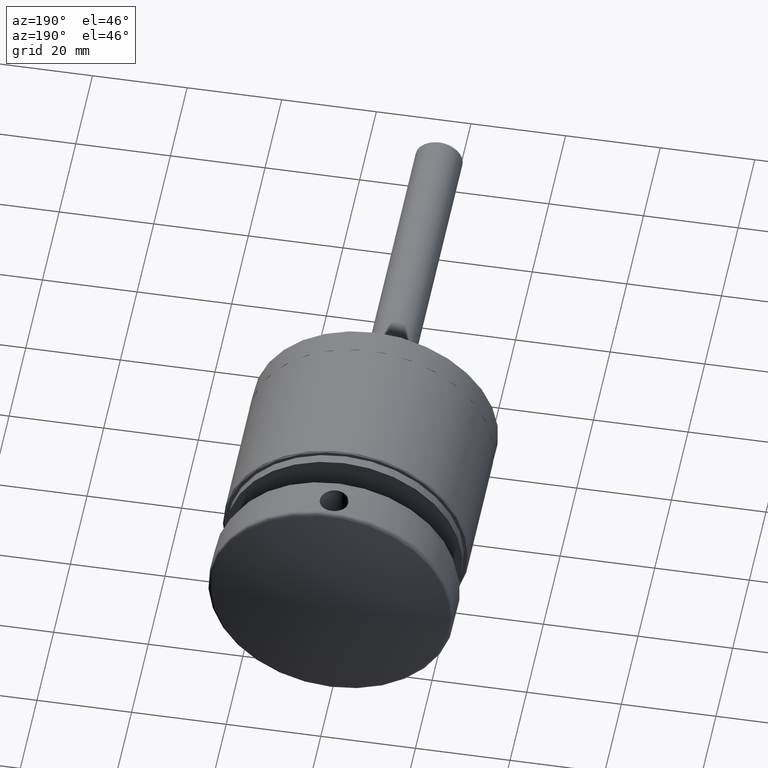
[diagram: clean part render]
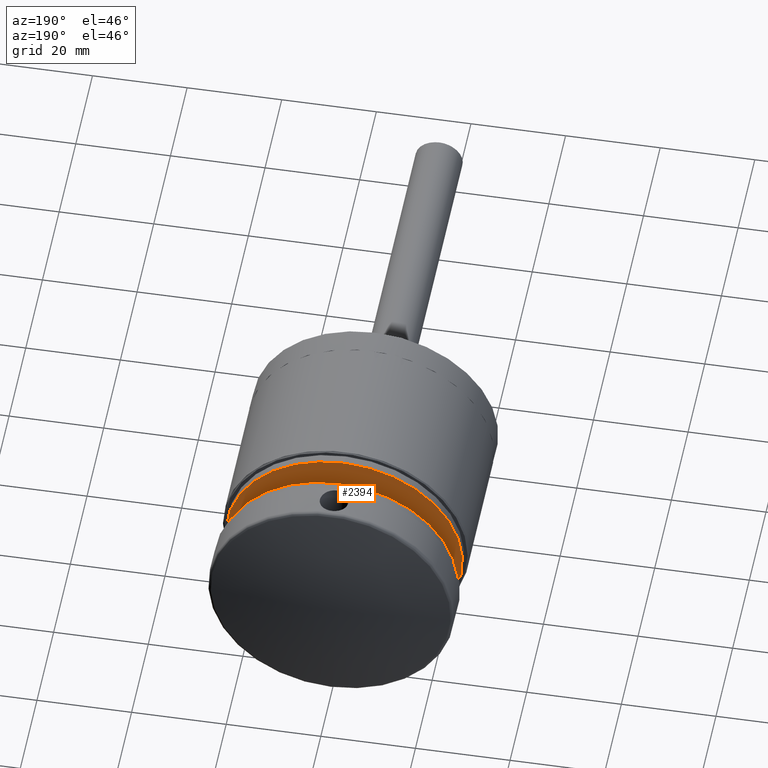
[diagram: same view with one face highlighted and labeled with its STEP entity id]
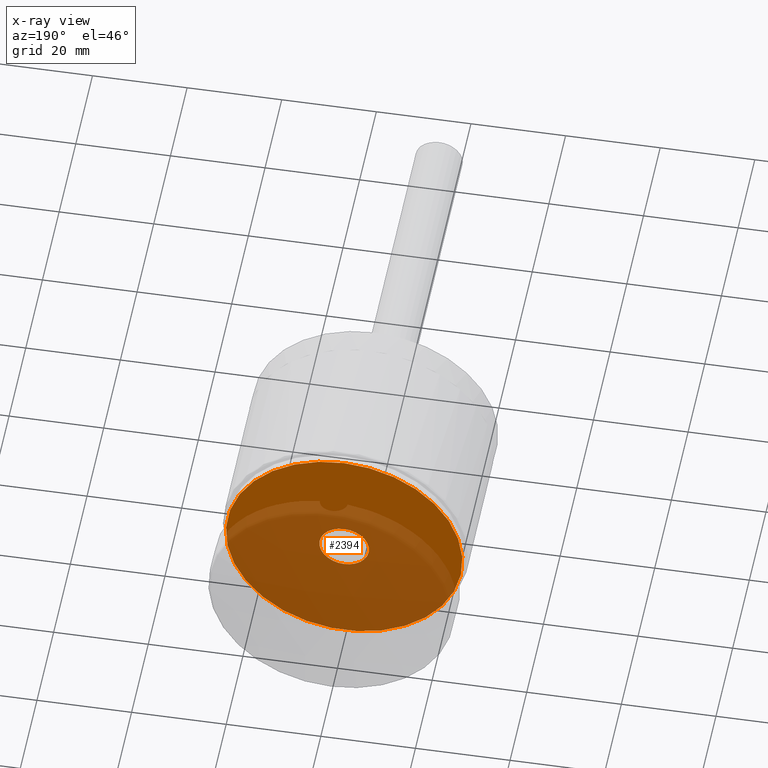
[diagram: x-ray of the same camera — body ghosted, the highlighted face saturated]
A machine part, auxiliary view. The second image highlights one B-rep face of the part: STEP entity #2394.
The next image is the same camera in x-ray: the body ghosted, the highlighted face saturated — about 68% of this face is hidden behind the body in this view.
In plain terms, the highlighted planar face has unit normal (0, 1, 0).
Its self-contained STEP definition (entity closure, byte-faithful):
#784 = ORIENTED_EDGE ( 'NONE', *, *, #1272, .T. ) ;
#1272 = EDGE_CURVE ( 'NONE', #13837, #13837, #17924, .T. ) ;
#2394 = ADVANCED_FACE ( 'NONE', ( #5405, #2489 ), #15052, .T. ) ;
#2395 = DIRECTION ( 'NONE',  ( 0.000000000000000000, 1.000000000000000000, 0.000000000000000000 ) ) ;
#2489 = FACE_BOUND ( 'NONE', #3518, .T. ) ;
#3518 = EDGE_LOOP ( 'NONE', ( #8002 ) ) ;
#4623 = EDGE_CURVE ( 'NONE', #15522, #15522, #27402, .T. ) ;
#5405 = FACE_OUTER_BOUND ( 'NONE', #23168, .T. ) ;
#6249 = AXIS2_PLACEMENT_3D ( 'NONE', #28266, #14613, #19995 ) ;
#7292 = CARTESIAN_POINT ( 'NONE',  ( 0.000000000000000000, 2.000000000000000000, 0.000000000000000000 ) ) ;
#7966 = CARTESIAN_POINT ( 'NONE',  ( 0.000000000000000000, 2.000000000000000000, 5.250000000000000000 ) ) ;
#8002 = ORIENTED_EDGE ( 'NONE', *, *, #4623, .F. ) ;
#9931 = DIRECTION ( 'NONE',  ( 0.000000000000000000, 0.000000000000000000, 1.000000000000000000 ) ) ;
#12601 = DIRECTION ( 'NONE',  ( 0.000000000000000000, 1.000000000000000000, 0.000000000000000000 ) ) ;
#13109 = AXIS2_PLACEMENT_3D ( 'NONE', #7292, #12601, #17043 ) ;
#13837 = VERTEX_POINT ( 'NONE', #29248 ) ;
#14613 = DIRECTION ( 'NONE',  ( 0.000000000000000000, 1.000000000000000000, 0.000000000000000000 ) ) ;
#15052 = PLANE ( 'NONE',  #13109 ) ;
#15522 = VERTEX_POINT ( 'NONE', #7966 ) ;
#17043 = DIRECTION ( 'NONE',  ( 0.000000000000000000, -0.000000000000000000, 1.000000000000000000 ) ) ;
#17924 = CIRCLE ( 'NONE', #6249, 25.00000000000000000 ) ;
#19995 = DIRECTION ( 'NONE',  ( 0.000000000000000000, 0.000000000000000000, 1.000000000000000000 ) ) ;
#20084 = AXIS2_PLACEMENT_3D ( 'NONE', #25863, #2395, #9931 ) ;
#23168 = EDGE_LOOP ( 'NONE', ( #784 ) ) ;
#25863 = CARTESIAN_POINT ( 'NONE',  ( 0.000000000000000000, 2.000000000000000000, 0.000000000000000000 ) ) ;
#27402 = CIRCLE ( 'NONE', #20084, 5.250000000000000000 ) ;
#28266 = CARTESIAN_POINT ( 'NONE',  ( 0.000000000000000000, 2.000000000000000000, 0.000000000000000000 ) ) ;
#29248 = CARTESIAN_POINT ( 'NONE',  ( 0.000000000000000000, 2.000000000000000000, 25.00000000000000000 ) ) ;